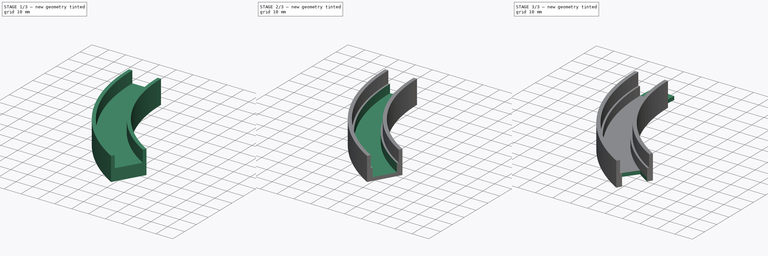
[diagram: build sequence overview — one tinted view per stage of 3, left to right]
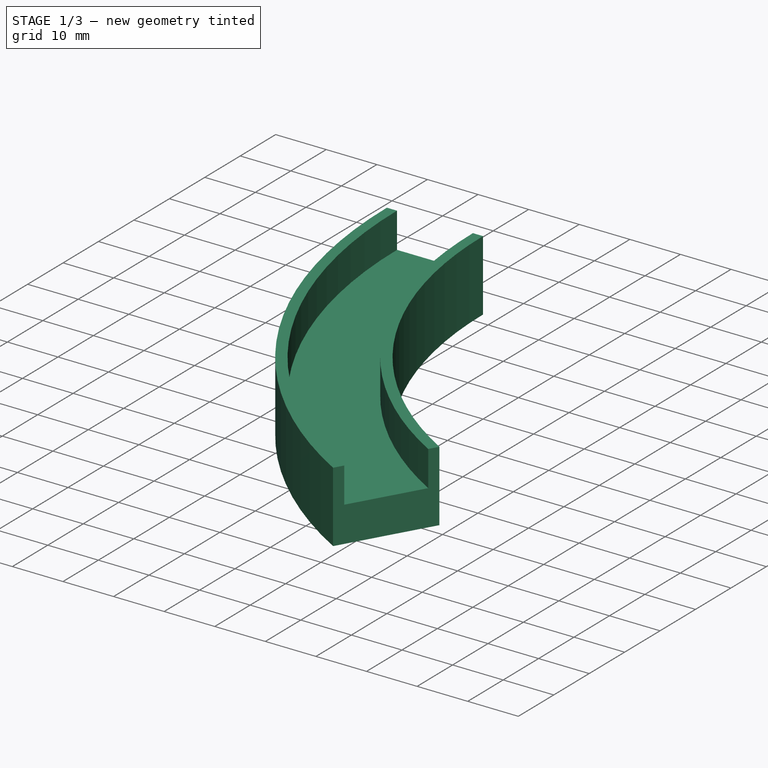
[diagram: stage 1 of 3 — iso view after this stage's code; geometry added in this stage tinted green]
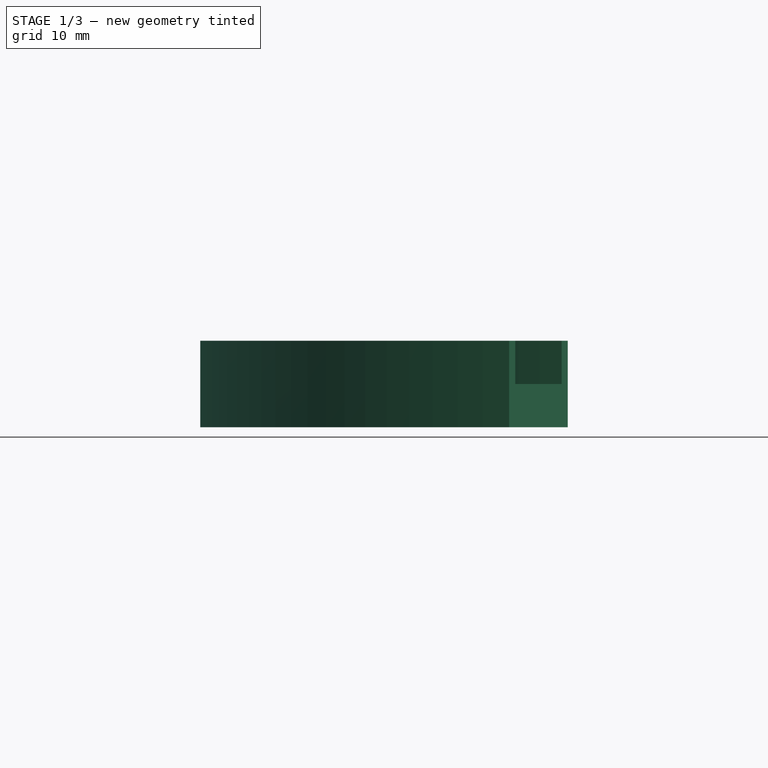
[diagram: stage 1 of 3 — front view after this stage's code; geometry added in this stage tinted green]
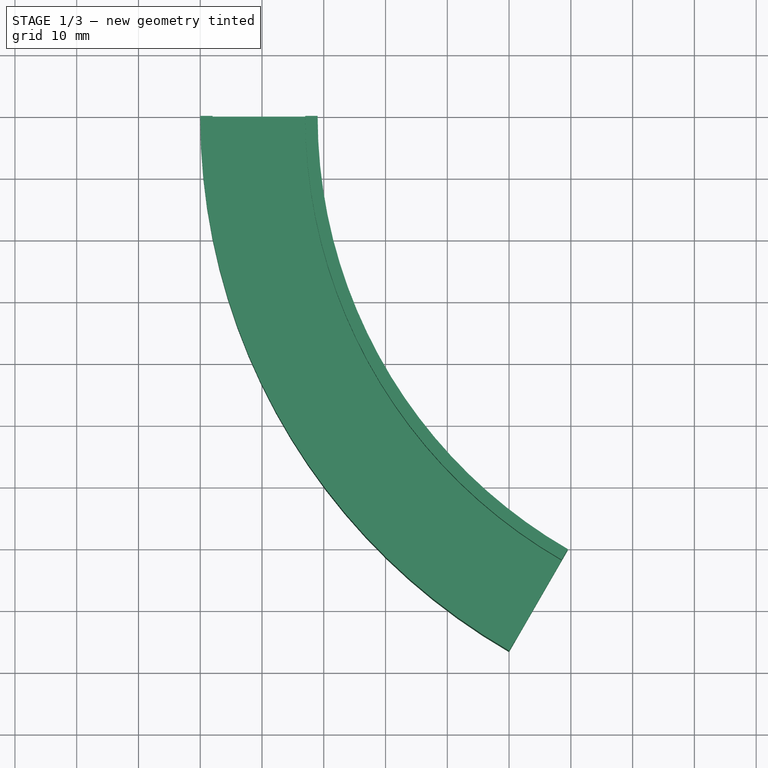
[diagram: stage 1 of 3 — top view after this stage's code; geometry added in this stage tinted green]
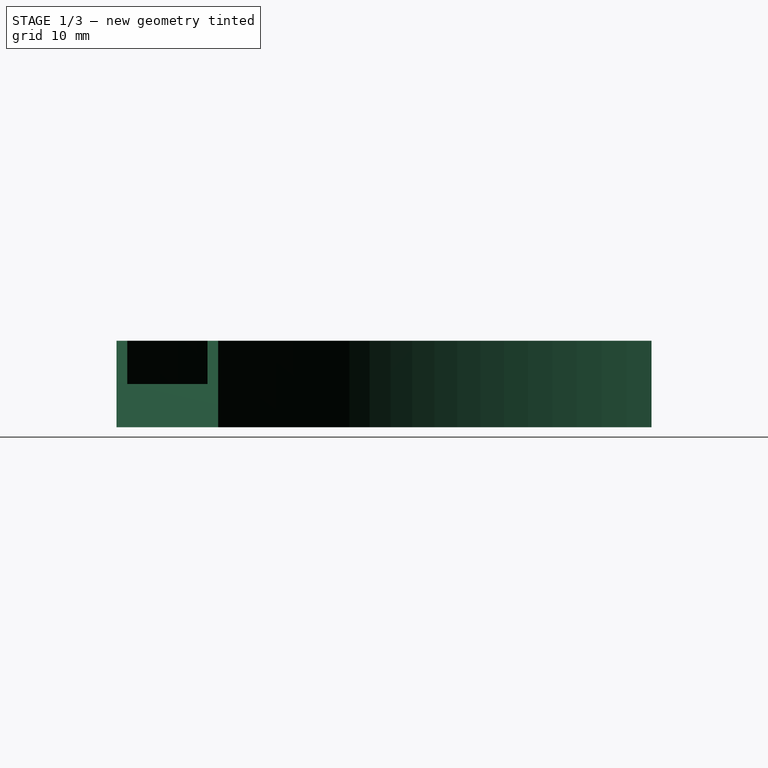
[diagram: stage 1 of 3 — right view after this stage's code; geometry added in this stage tinted green]
FCSTD DOCUMENT  (FreeCAD 0.19R24366 (Git))
Label: led_ring_segment
License: All rights reserved
LicenseURL: http://en.wikipedia.org/wiki/All_rights_reserved
objects: Sketcher::SketchObject×5, PartDesign::Pocket×3, PartDesign::Pad×2, PartDesign::Plane×2, Spreadsheet::Sheet×1, PartDesign::Body×1
note: 18 computed .brp shape members not serialized (recipe doc carries the construction recipe); baked Part::Feature solids carry a one-line shape summary decoded from their .brp

FEATURE [Spreadsheet::Sheet] Spreadsheet
  cells = A1=Segment Count; B1=Angle ; C1=ring Size Outer; A2(segmentCount)=6; B2(segmentAngle)==360 / segmentCount; C2(ringSize)=100; A3=Board Width; B3=Board Height; A4(boardWidth)=15; B4(boardHeight)=5; A5=Wall Thickness; B5=Wall Height; A6(wallThickness)=2; B6(wallHeight)=5
FEATURE [Sketcher::SketchObject] Sketch001
  FullyConstrained = true
  MapMode = 5
  Support = -> [XY_Plane]
  expr: Constraints[11] = <<Spreadsheet>>.segmentAngle
  expr: Constraints[10] = <<Spreadsheet>>.segmentAngle
  expr: Constraints[5] = <<Spreadsheet>>.boardWidth + <<Spreadsheet>>.wallThickness * 2
  expr: Constraints[2] = <<Spreadsheet>>.ringSize
  sketch-geometry (5):
    g0: LineSegment StartX=0 StartY=0 StartZ=0 EndX=-100 EndY=0 EndZ=0
    g1: LineSegment StartX=-100 StartY=0 StartZ=0 EndX=-81 EndY=0 EndZ=0
    g2: ArcOfCircle CenterX=0 CenterY=0 CenterZ=0 NormalX=0 NormalY=0 NormalZ=1 AngleXU=0 Radius=81 StartAngle=3.14159 EndAngle=4.18879
    g3: ArcOfCircle CenterX=0 CenterY=0 CenterZ=0 NormalX=0 NormalY=0 NormalZ=1 AngleXU=0 Radius=100 StartAngle=3.14159 EndAngle=4.18879
    g4: LineSegment StartX=-40.5 StartY=-70.1481 StartZ=0 EndX=-50 EndY=-86.6025 EndZ=0
  constraints (14):
    c: Coincident(g0,g-1)
    c: PointOnObject(g0,g-1)
    c: Distance(g0) = 100
    c: Coincident(g1,g0)
    c: PointOnObject(g1,g0)
    c: Distance(g1) = 19
    c: Coincident(g2,g-1)
    c: Coincident(g2,g1)
    c: Coincident(g3,g2)
    c: Coincident(g3,g1)
    c: Angle(g2) = 1.0472
    c: Angle(g3) = 1.0472
    c: Coincident(g4,g2)
    c: Coincident(g4,g3)
FEATURE [PartDesign::Pad] Pad  label="segmentPad"
  Direction = (1,1,1)
  Length = 14
  Length2 = 100
  Profile = -> Sketch001
  Type = 0
  expr: Length = <<Spreadsheet>>.wallThickness * 2 + <<Spreadsheet>>.boardHeight + <<Spreadsheet>>.wallHeight
FEATURE [PartDesign::Plane] DatumPlane  label="topPlane"
  AttachmentOffset = pos=(0,0,14) rot=(0,0,1;0rad)
  Length = 148.622
  MapMode = 5
  Placement = pos=(0,0,14) rot=(0,0,1;0rad)
  ResizeMode = 0
  Support = -> [XY_Plane]
  Width = 135.225
  expr: .AttachmentOffset.Base.z = <<Spreadsheet>>.wallThickness * 2 + <<Spreadsheet>>.boardHeight + <<Spreadsheet>>.wallHeight
FEATURE [Sketcher::SketchObject] Sketch
  FullyConstrained = true
  MapMode = 5
  Placement = pos=(0,0,14) rot=(0,0,1;0rad)
  Support = -> [DatumPlane]
  expr: Constraints[13] = <<Spreadsheet>>.segmentAngle
  expr: Constraints[12] = <<Spreadsheet>>.segmentAngle
  expr: Constraints[5] = <<Spreadsheet>>.boardWidth
  expr: Constraints[2] = <<Spreadsheet>>.ringSize - <<Spreadsheet>>.wallThickness
  sketch-geometry (5):
    g0: LineSegment StartX=0 StartY=0 StartZ=0 EndX=-98 EndY=0 EndZ=0
    g1: LineSegment StartX=-98 StartY=0 StartZ=0 EndX=-83 EndY=0 EndZ=0
    g2: ArcOfCircle CenterX=0 CenterY=0 CenterZ=0 NormalX=0 NormalY=0 NormalZ=1 AngleXU=0 Radius=83 StartAngle=3.14159 EndAngle=4.18879
    g3: ArcOfCircle CenterX=0 CenterY=0 CenterZ=0 NormalX=0 NormalY=0 NormalZ=1 AngleXU=0 Radius=98 StartAngle=3.14159 EndAngle=4.18879
    g4: LineSegment StartX=-41.5 StartY=-71.8801 StartZ=0 EndX=-49 EndY=-84.8705 EndZ=0
  constraints (14):
    c: Coincident(g0,g-1)
    c: PointOnObject(g0,g-1)
    c: Distance(g0) = 98
    c: Coincident(g1,g0)
    c: PointOnObject(g1,g0)
    c: Distance(g1) = 15
    c: Coincident(g2,g-1)
    c: Coincident(g2,g1)
    c: Coincident(g3,g2)
    c: Coincident(g3,g1)
    c: Coincident(g4,g2)
    c: Coincident(g4,g3)
    c: Angle(g2) = 1.0472
    c: Angle(g3) = 1.0472
FEATURE [PartDesign::Pocket] Pocket  label="boardPocket"
  BaseFeature = -> Pad
  Length = 7
  Length2 = 100
  Profile = -> Sketch
  Type = 0
  expr: Length = <<Spreadsheet>>.wallHeight + <<Spreadsheet>>.wallThickness
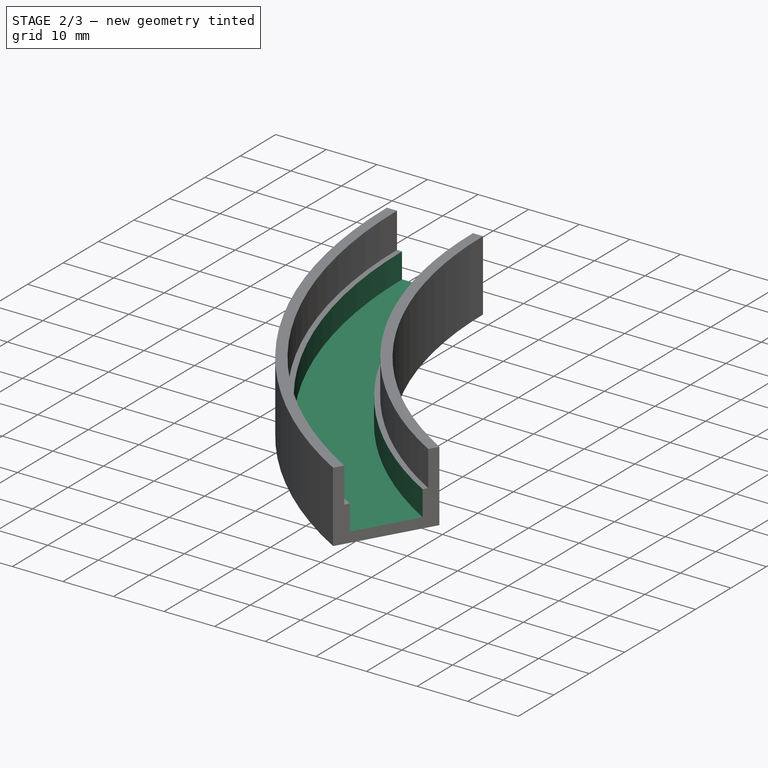
[diagram: stage 2 of 3 — iso view after this stage's code; geometry added in this stage tinted green]
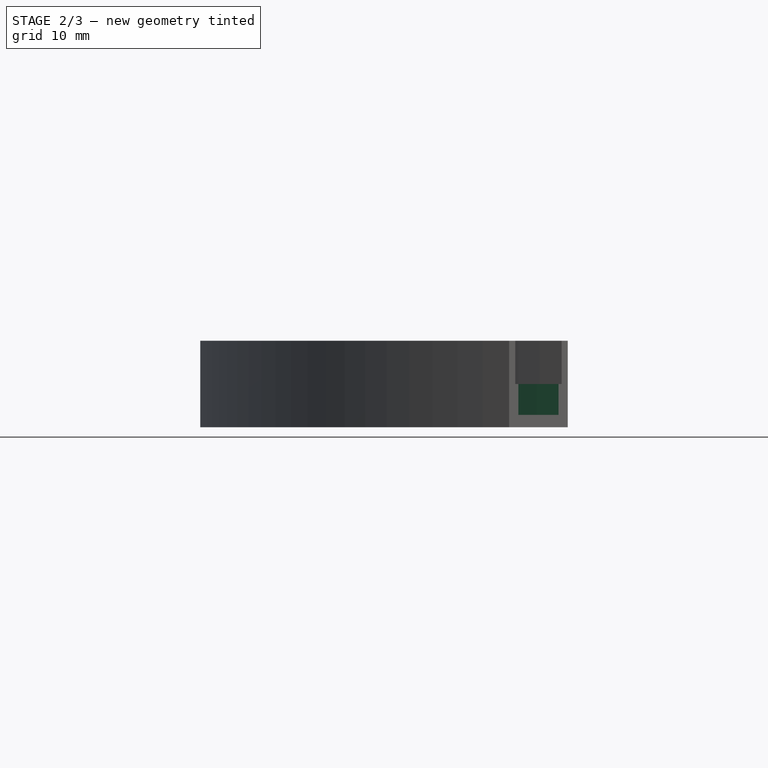
[diagram: stage 2 of 3 — front view after this stage's code; geometry added in this stage tinted green]
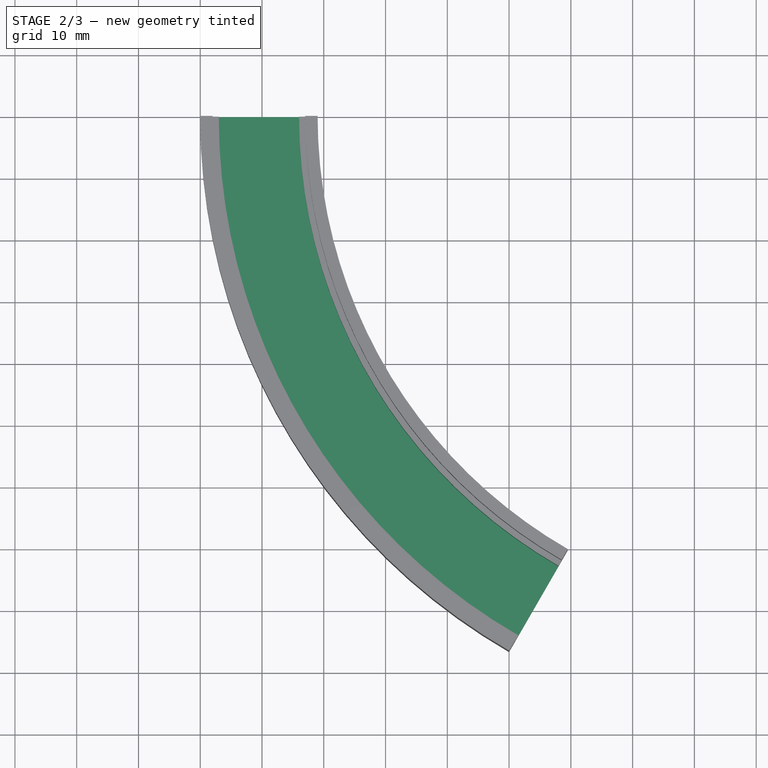
[diagram: stage 2 of 3 — top view after this stage's code; geometry added in this stage tinted green]
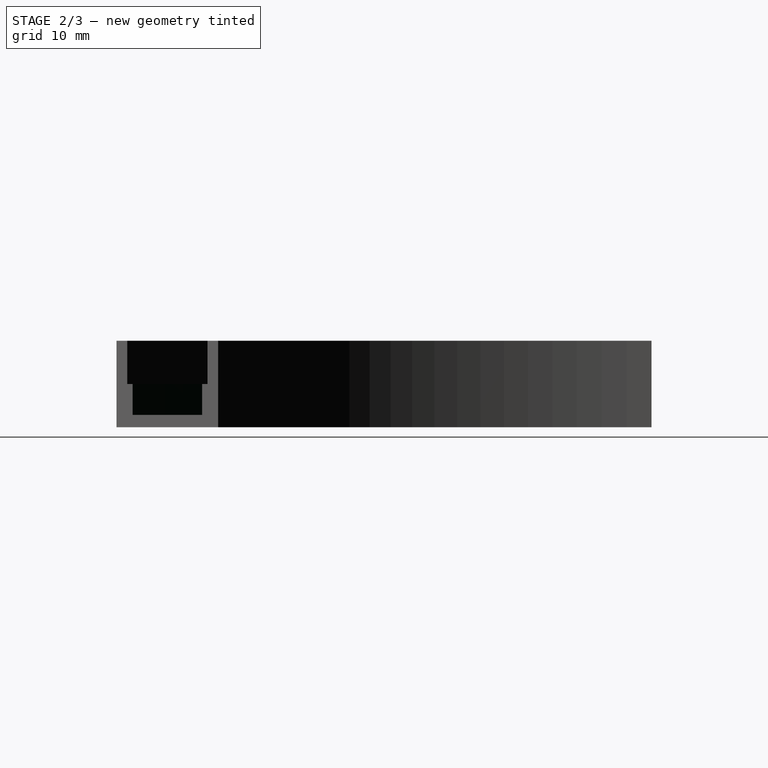
[diagram: stage 2 of 3 — right view after this stage's code; geometry added in this stage tinted green]
FEATURE [Sketcher::SketchObject] Sketch002
  FullyConstrained = true
  MapMode = 5
  Placement = pos=(0,0,14) rot=(0,0,1;0rad)
  Support = -> [DatumPlane]
  expr: Constraints[13] = <<Spreadsheet>>.segmentAngle
  expr: Constraints[12] = <<Spreadsheet>>.segmentAngle
  expr: Constraints[5] = <<Spreadsheet>>.boardWidth - <<Spreadsheet>>.wallThickness
  expr: Constraints[2] = <<Spreadsheet>>.ringSize - <<Spreadsheet>>.wallThickness - 1
  sketch-geometry (5):
    g0: LineSegment StartX=0 StartY=0 StartZ=0 EndX=-97 EndY=0 EndZ=0
    g1: LineSegment StartX=-97 StartY=0 StartZ=0 EndX=-84 EndY=0 EndZ=0
    g2: ArcOfCircle CenterX=0 CenterY=0 CenterZ=0 NormalX=0 NormalY=0 NormalZ=1 AngleXU=0 Radius=84 StartAngle=3.14159 EndAngle=4.18879
    g3: ArcOfCircle CenterX=0 CenterY=0 CenterZ=0 NormalX=0 NormalY=0 NormalZ=1 AngleXU=0 Radius=97 StartAngle=3.14159 EndAngle=4.18879
    g4: LineSegment StartX=-42 StartY=-72.7461 StartZ=0 EndX=-48.5 EndY=-84.0045 EndZ=0
  constraints (14):
    c: Coincident(g0,g-1)
    c: PointOnObject(g0,g-1)
    c: Distance(g0) = 97
    c: Coincident(g1,g0)
    c: PointOnObject(g1,g0)
    c: Distance(g1) = 13
    c: Coincident(g2,g-1)
    c: Coincident(g2,g1)
    c: Coincident(g3,g2)
    c: Coincident(g3,g1)
    c: Coincident(g4,g2)
    c: Coincident(g4,g3)
    c: Angle(g2) = 1.0472
    c: Angle(g3) = 1.0472
FEATURE [PartDesign::Pocket] Pocket001  label="bottomPocket"
  BaseFeature = -> Pocket
  Length = 12
  Length2 = 100
  Profile = -> Sketch002
  Type = 0
  expr: Length = <<Spreadsheet>>.wallHeight + <<Spreadsheet>>.boardHeight + <<Spreadsheet>>.wallThickness
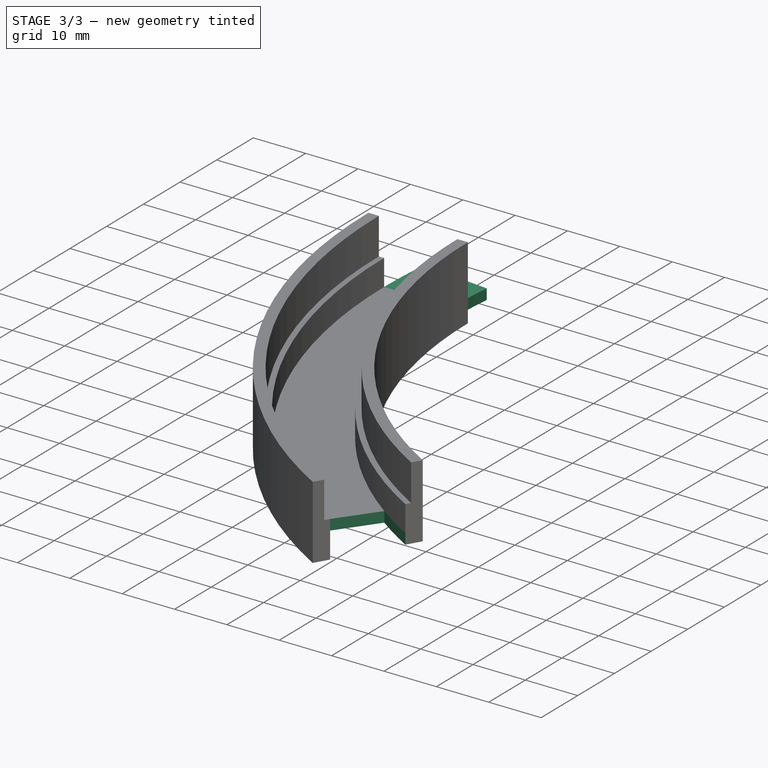
[diagram: stage 3 of 3 — iso view after this stage's code; geometry added in this stage tinted green]
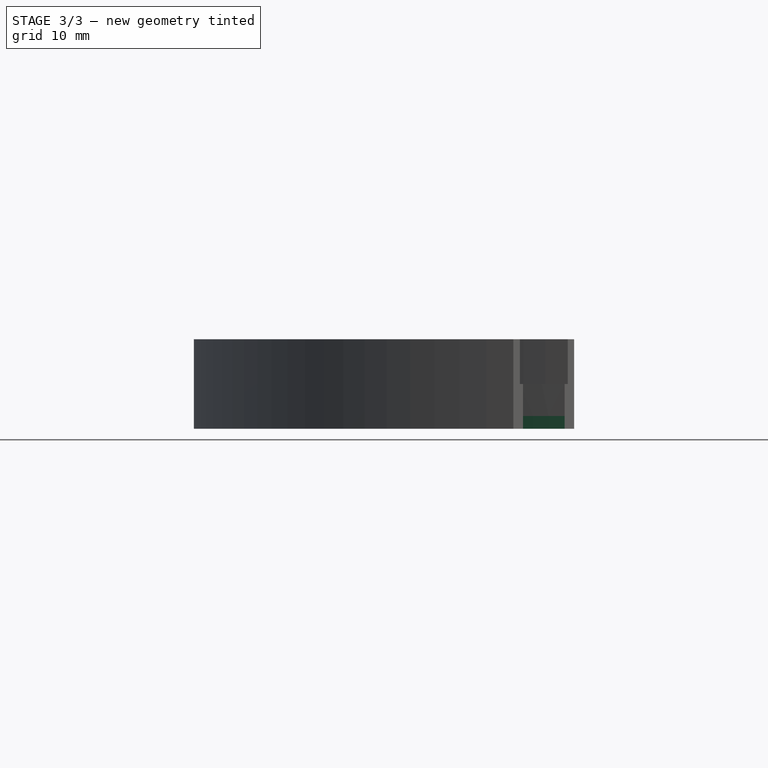
[diagram: stage 3 of 3 — front view after this stage's code; geometry added in this stage tinted green]
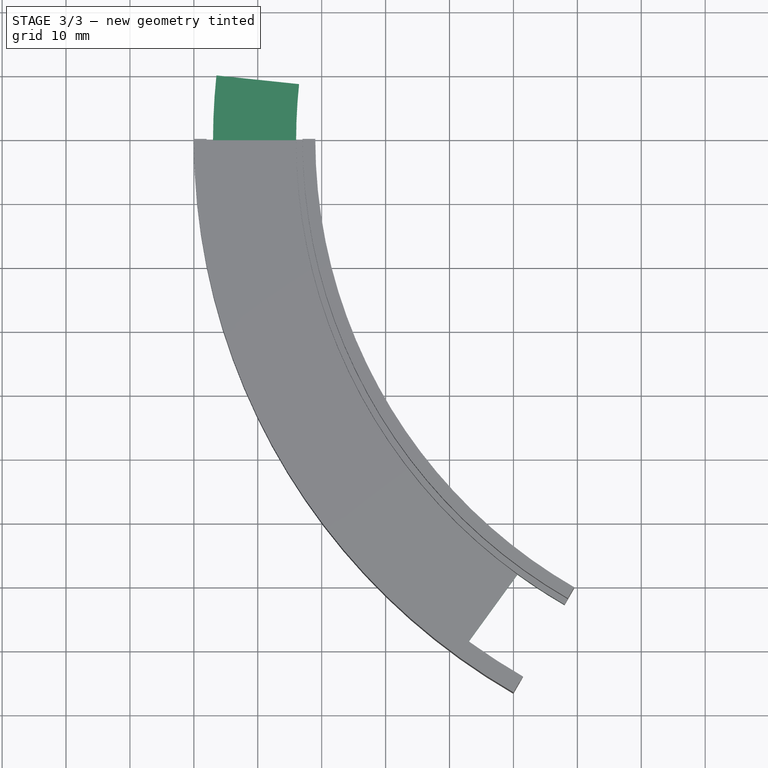
[diagram: stage 3 of 3 — top view after this stage's code; geometry added in this stage tinted green]
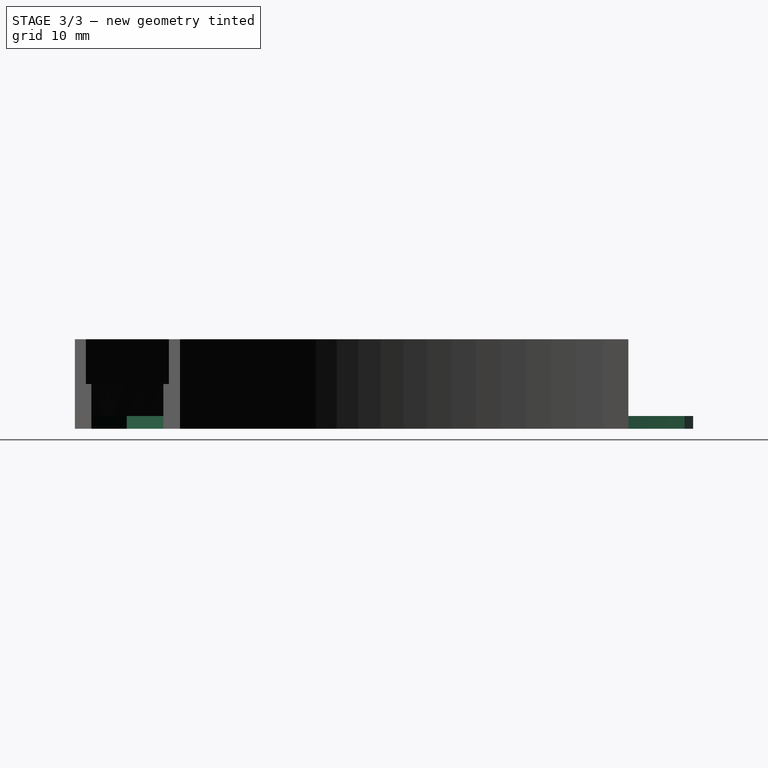
[diagram: stage 3 of 3 — right view after this stage's code; geometry added in this stage tinted green]
FEATURE [PartDesign::Plane] DatumPlane001  label="bottomPlane"
  AttachmentOffset = pos=(0,0,2) rot=(0,0,1;0rad)
  Length = 148.622
  MapMode = 5
  Placement = pos=(0,0,2) rot=(0,0,1;0rad)
  ResizeMode = 0
  Support = -> [XY_Plane]
  Width = 135.225
  expr: .AttachmentOffset.Base.z = <<Spreadsheet>>.wallThickness
FEATURE [Sketcher::SketchObject] Sketch003
  FullyConstrained = true
  MapMode = 5
  Placement = pos=(0,0,2) rot=(0,0,1;0rad)
  Support = -> [DatumPlane001]
  expr: Constraints[13] = <<Spreadsheet>>.segmentAngle / 10
  expr: Constraints[12] = <<Spreadsheet>>.segmentAngle / 10
  expr: Constraints[5] = <<Spreadsheet>>.boardWidth - <<Spreadsheet>>.wallThickness
  expr: Constraints[2] = <<Spreadsheet>>.ringSize - <<Spreadsheet>>.wallThickness - 1
  sketch-geometry (5):
    g0: LineSegment StartX=0 StartY=0 StartZ=0 EndX=-97 EndY=1.19e-14 EndZ=0
    g1: LineSegment StartX=-97 StartY=1.19e-14 StartZ=0 EndX=-84 EndY=1.03e-14 EndZ=0
    g2: ArcOfCircle CenterX=0 CenterY=0 CenterZ=0 NormalX=0 NormalY=0 NormalZ=1 AngleXU=0 Radius=84 StartAngle=3.03687 EndAngle=3.14159
    g3: ArcOfCircle CenterX=0 CenterY=0 CenterZ=0 NormalX=0 NormalY=0 NormalZ=1 AngleXU=0 Radius=97 StartAngle=3.03687 EndAngle=3.14159
    g4: LineSegment StartX=-96.4686 StartY=10.1393 StartZ=0 EndX=-83.5398 EndY=8.78039 EndZ=0
  constraints (14):
    c: Coincident(g0,g-1)
    c: PointOnObject(g0,g-1)
    c: Distance(g0) = 97
    c: Coincident(g1,g0)
    c: PointOnObject(g1,g0)
    c: Distance(g1) = 13
    c: Coincident(g2,g-1)
    c: Coincident(g2,g1)
    c: Coincident(g3,g2)
    c: Coincident(g3,g1)
    c: Coincident(g4,g3)
    c: Coincident(g4,g2)
    c: Angle(g2) = 0.10472
    c: Angle(g3) = 0.10472
FEATURE [PartDesign::Pad] Pad001  label="alignmentPad"
  BaseFeature = -> Pocket001
  Direction = (1,1,1)
  Length = 2
  Length2 = 100
  Profile = -> Sketch003
  Reversed = true
  Type = 0
  expr: Length = <<Spreadsheet>>.wallThickness
FEATURE [Sketcher::SketchObject] Sketch004
  FullyConstrained = true
  MapMode = 5
  Placement = pos=(0,0,2) rot=(0,0,1;0rad)
  Support = -> [DatumPlane001]
  expr: Constraints[19] = <<Spreadsheet>>.segmentAngle / 10
  expr: Constraints[18] = <<Spreadsheet>>.segmentAngle / 10
  expr: Constraints[11] = <<Spreadsheet>>.boardWidth - <<Spreadsheet>>.wallThickness
  expr: Constraints[10] = <<Spreadsheet>>.segmentAngle
  expr: Constraints[5] = <<Spreadsheet>>.segmentAngle
  expr: Constraints[2] = <<Spreadsheet>>.ringSize - <<Spreadsheet>>.wallThickness - 1
  sketch-geometry (8):
    g0: LineSegment StartX=0 StartY=0 StartZ=0 EndX=-97 EndY=0 EndZ=0
    g1: ArcOfCircle CenterX=0 CenterY=0 CenterZ=0 NormalX=0 NormalY=0 NormalZ=1 AngleXU=0 Radius=97 StartAngle=3.14159 EndAngle=4.18879
    g2: LineSegment StartX=-97 StartY=0 StartZ=0 EndX=-84 EndY=1.03e-14 EndZ=0
    g3: ArcOfCircle CenterX=0 CenterY=0 CenterZ=0 NormalX=0 NormalY=0 NormalZ=1 AngleXU=0 Radius=84 StartAngle=3.14159 EndAngle=4.18879
    g4: LineSegment StartX=-48.5 StartY=-84.0045 StartZ=0 EndX=-42 EndY=-72.7461 EndZ=0
    g5: ArcOfCircle CenterX=0 CenterY=0 CenterZ=0 NormalX=0 NormalY=0 NormalZ=1 AngleXU=0 Radius=97 StartAngle=4.08407 EndAngle=4.18879
    g6: ArcOfCircle CenterX=0 CenterY=0 CenterZ=0 NormalX=0 NormalY=0 NormalZ=1 AngleXU=0 Radius=84 StartAngle=4.08407 EndAngle=4.18879
    g7: LineSegment StartX=-57.0152 StartY=-78.4746 StartZ=0 EndX=-49.374 EndY=-67.9574 EndZ=0
  constraints (22):
    c: Coincident(g0,g-1)
    c: PointOnObject(g0,g-1)
    c: Distance(g0) = 97
    c: Coincident(g1,g-1)
    c: Coincident(g1,g0)
    c: Angle(g1) = 1.0472
    c: Coincident(g2,g0)
    c: PointOnObject(g2,g0)
    c: Coincident(g3,g-1)
    c: Coincident(g3,g2)
    c: Angle(g3) = 1.0472
    c: Distance(g2) = 13
    c: Coincident(g4,g1)
    c: Coincident(g4,g3)
    c: Coincident(g5,g-1)
    c: Coincident(g5,g4)
    c: Coincident(g6,g5)
    c: Coincident(g6,g4)
    c: Angle(g6) = 0.10472
    c: Angle(g5) = 0.10472
    c: Coincident(g7,g5)
    c: Coincident(g7,g6)
FEATURE [PartDesign::Pocket] Pocket002
  BaseFeature = -> Pad001
  Length = 2
  Length2 = 100
  Profile = -> Sketch004
  Type = 0
  expr: Length = <<Spreadsheet>>.wallThickness
FEATURE [PartDesign::Body] Body
  Group = -> [Sketch001,Pad,DatumPlane,Sketch,Pocket,Sketch002,Pocket001,DatumPlane001,Sketch003,Pad001,Sketch004,Pocket002]
  Origin = -> Origin
  Tip = -> Pocket002
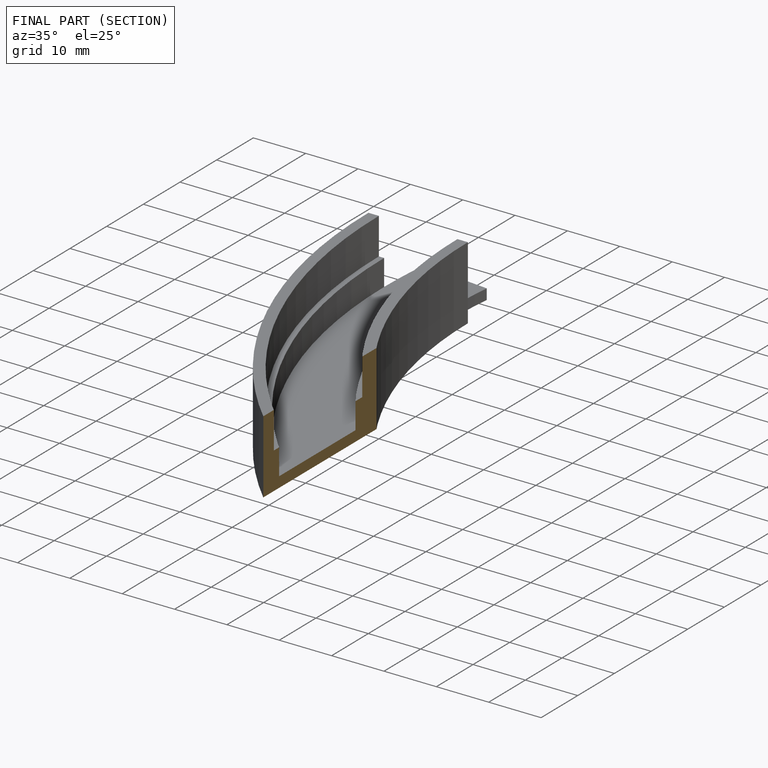
[diagram: finished part — half-section view (interior)]
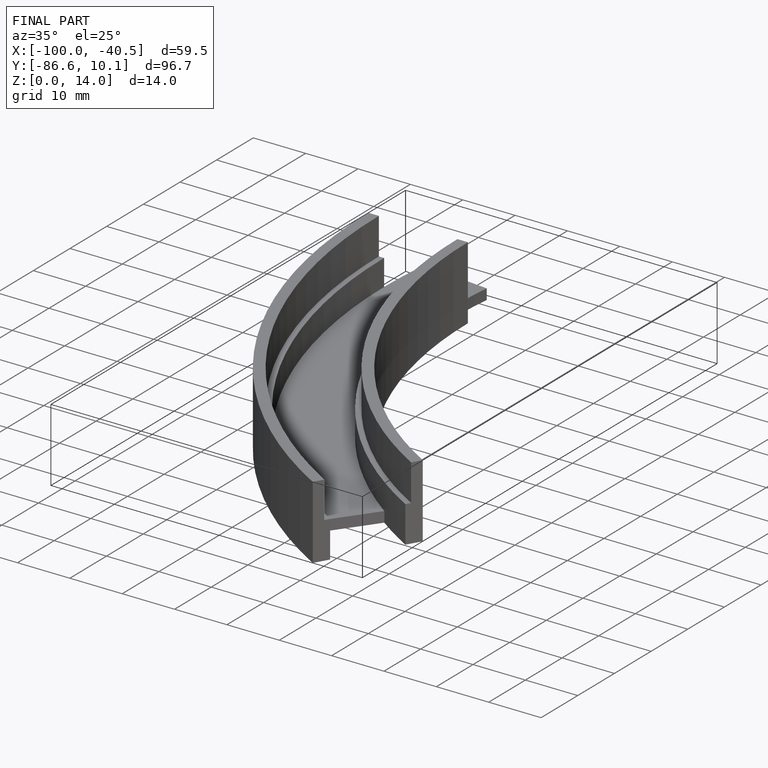
[diagram: finished part — iso view with bounding-box wireframe]
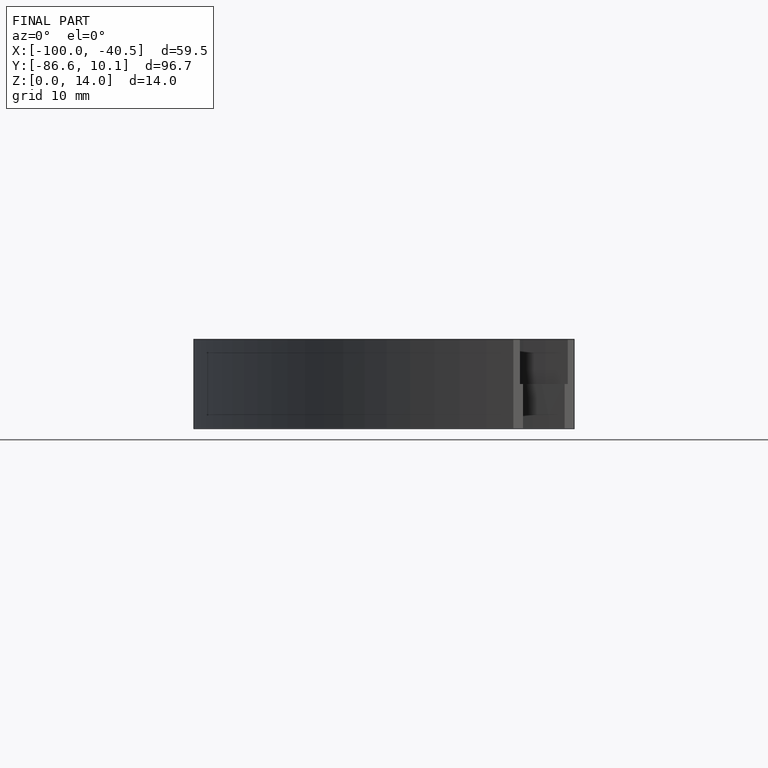
[diagram: finished part — front view with bounding-box wireframe]
